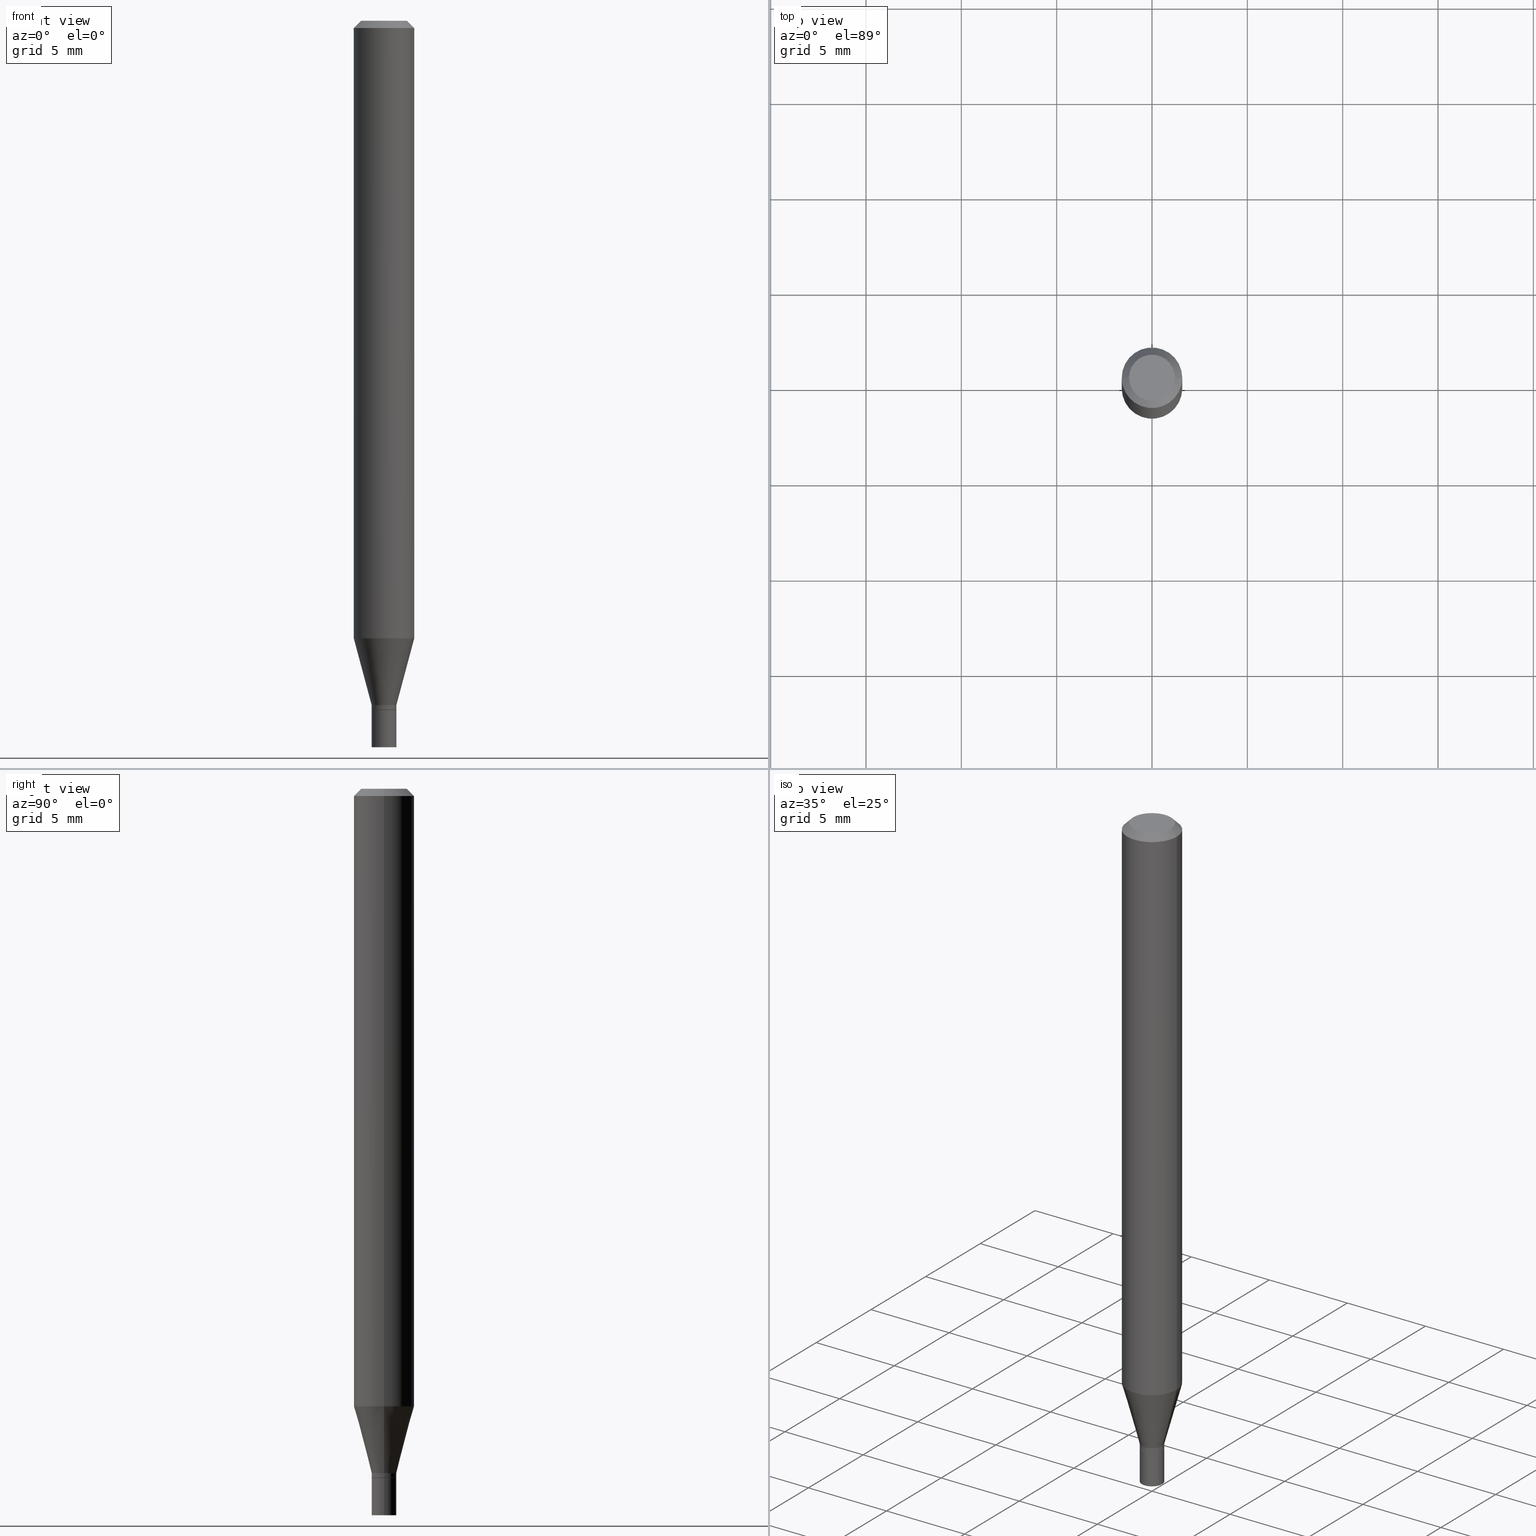
[diagram: canonical four-view strip — front | top / right | iso, engineering-drawing reading convention]
A machine part, canonical four-view strip (front | top / right | iso — engineering-drawing reading convention). The complete STEP part file that produces these views, byte-faithful:
ISO-10303-21;
HEADER;
FILE_DESCRIPTION (( 'STEP AP203' ),
    '1' );
FILE_NAME ('02378.STEP',
    '2024-03-18T20:18:24',
    ( '' ),
    ( '' ),
    'SwSTEP 2.0',
    'SolidWorks 2023',
    '' );
FILE_SCHEMA (( 'CONFIG_CONTROL_DESIGN' ));
ENDSEC;

DATA;
#1 = EDGE_CURVE ( 'NONE', #326, #252, #396, .T. ) ;
#2 = VERTEX_POINT ( 'NONE', #359 ) ;
#3 = CYLINDRICAL_SURFACE ( 'NONE', #180, 0.02549999999999992203 ) ;
#4 = DIMENSIONAL_EXPONENTS ( 1.000000000000000000, 0.000000000000000000, 0.000000000000000000, 0.000000000000000000, 0.000000000000000000, 0.000000000000000000, 0.000000000000000000 ) ;
#5 = EDGE_LOOP ( 'NONE', ( #162, #247, #21, #431 ) ) ;
#6 = CLOSED_SHELL ( 'NONE', ( #58, #301, #405, #155 ) ) ;
#7 = APPROVAL_STATUS ( 'not_yet_approved' ) ;
#8 = DIRECTION ( 'NONE',  ( 1.000000000000000000, -6.982962677686266711E-15, 4.876176775795935793E-29 ) ) ;
#9 = CARTESIAN_POINT ( 'NONE',  ( 3.117762711318311949E-29, -4.451338859026439617E-15, -1.274914120119951644 ) ) ;
#10 = LINE ( 'NONE', #365, #107 ) ;
#11 = CARTESIAN_POINT ( 'NONE',  ( 3.576687321579069994E-29, -5.368277968210015545E-15, -1.500000000000000222 ) ) ;
#12 = FACE_OUTER_BOUND ( 'NONE', #243, .T. ) ;
#13 = DIRECTION ( 'NONE',  ( -2.445468806185136877E-29, 3.491481338843145188E-15, 1.000000000000000000 ) ) ;
#14 = ORIENTED_EDGE ( 'NONE', *, *, #293, .F. ) ;
#15 = AXIS2_PLACEMENT_3D ( 'NONE', #321, #451, #416 ) ;
#16 = CARTESIAN_POINT ( 'NONE',  ( 3.455447423139598357E-29, -4.933463131785365512E-15, -1.413000000000000256 ) ) ;
#17 = MANIFOLD_SOLID_BREP ( 'Body-Move/Copy2[1]', #6 ) ;
#18 = DATE_AND_TIME ( #345, #108 ) ;
#19 = DIRECTION ( 'NONE',  ( -1.000000000000000000, 6.982962677686265922E-15, -4.876176775795935793E-29 ) ) ;
#20 = EDGE_LOOP ( 'NONE', ( #166, #106, #99, #205 ) ) ;
#21 = ORIENTED_EDGE ( 'NONE', *, *, #355, .T. ) ;
#22 = APPROVAL_STATUS ( 'not_yet_approved' ) ;
#23 = VECTOR ( 'NONE', #336, 39.37007874015748143 ) ;
#24 = LOCAL_TIME ( 16, 18, 24.00000000000000000, #134 ) ;
#25 = CARTESIAN_POINT ( 'NONE',  ( 0.02549999999999999836, -5.146443493454796047E-15, -1.423000000000000043 ) ) ;
#26 = ORIENTED_EDGE ( 'NONE', *, *, #212, .T. ) ;
#27 = FACE_OUTER_BOUND ( 'NONE', #288, .T. ) ;
#28 = DIRECTION ( 'NONE',  ( -2.445468806185136597E-29, 3.491481338843145583E-15, 1.000000000000000000 ) ) ;
#29 = VECTOR ( 'NONE', #439, 39.37007874015748143 ) ;
#30 = ORGANIZATION ( 'UNSPECIFIED', 'UNSPECIFIED', '' ) ;
#31 = PRODUCT_DEFINITION ( 'UNKNOWN', '', #139, #84 ) ;
#32 = CARTESIAN_POINT ( 'NONE',  ( -0.02549999999999999836, -4.921611579100430777E-15, -1.423000000000000043 ) ) ;
#33 = ORIENTED_EDGE ( 'NONE', *, *, #348, .T. ) ;
#34 = CONICAL_SURFACE ( 'NONE', #343, 0.02499999999999999792, 0.7853981633974739252 ) ;
#35 = ORIENTED_EDGE ( 'NONE', *, *, #389, .F. ) ;
#36 = EDGE_LOOP ( 'NONE', ( #433, #418, #132, #302 ) ) ;
#37 = DIRECTION ( 'NONE',  ( 1.000000000000000000, -6.982962677686259611E-15, 0.000000000000000000 ) ) ;
#38 = DIRECTION ( 'NONE',  ( -2.445468806185136597E-29, 3.491481338843145583E-15, 1.000000000000000000 ) ) ;
#39 = DIRECTION ( 'NONE',  ( -0.2588190451025212391, 5.211531920934549464E-15, 0.9659258262890679791 ) ) ;
#40 = EDGE_CURVE ( 'NONE', #245, #127, #373, .T. ) ;
#41 = AXIS2_PLACEMENT_3D ( 'NONE', #421, #311, #126 ) ;
#42 = DATE_AND_TIME ( #367, #216 ) ;
#43 = CARTESIAN_POINT ( 'NONE',  ( -0.02499999999999999792, -4.788093034059660756E-15, -1.423000000000000043 ) ) ;
#44 = APPROVAL_ROLE ( '' ) ;
#45 = DIRECTION ( 'NONE',  ( 1.000000000000000000, -6.982962677686262766E-15, 0.000000000000000000 ) ) ;
#46 = DIRECTION ( 'NONE',  ( 1.000000000000000000, -6.982962677686259611E-15, 0.000000000000000000 ) ) ;
#47 = ORIENTED_EDGE ( 'NONE', *, *, #176, .T. ) ;
#48 = CARTESIAN_POINT ( 'NONE',  ( 1.780655482810345820E-16, 0.02549999999999503011, -1.423000000000000043 ) ) ;
#49 = ADVANCED_FACE ( 'NONE', ( #141 ), #385, .T. ) ;
#50 = FACE_OUTER_BOUND ( 'NONE', #287, .T. ) ;
#51 = AXIS2_PLACEMENT_3D ( 'NONE', #241, #63, #207 ) ;
#52 = DIRECTION ( 'NONE',  ( -2.445468806185136877E-29, 3.491481338843145188E-15, 1.000000000000000000 ) ) ;
#53 = DIRECTION ( 'NONE',  ( 0.2588190451025212391, 1.565188264969622362E-15, 0.9659258262890679791 ) ) ;
#54 = CC_DESIGN_DATE_AND_TIME_ASSIGNMENT ( #42, #70, ( #278 ) ) ;
#55 = DIRECTION ( 'NONE',  ( -2.445468806185136597E-29, 3.491481338843145583E-15, 1.000000000000000000 ) ) ;
#56 = APPLICATION_PROTOCOL_DEFINITION ( 'international standard', 'config_control_design', 1994, #452 ) ;
#57 = DIRECTION ( 'NONE',  ( -2.445468806185136597E-29, 3.491481338843145583E-15, 1.000000000000000000 ) ) ;
#58 = ADVANCED_FACE ( 'NONE', ( #71 ), #133, .T. ) ;
#59 = AXIS2_PLACEMENT_3D ( 'NONE', #93, #360, #388 ) ;
#60 = CONICAL_SURFACE ( 'NONE', #41, 0.02499999999999999792, 0.7853981633974739252 ) ;
#61 = DATE_TIME_ROLE ( 'creation_date' ) ;
#62 = ORIENTED_EDGE ( 'NONE', *, *, #171, .T. ) ;
#63 = DIRECTION ( 'NONE',  ( -2.438088387897960049E-29, 3.491481338843145188E-15, 1.000000000000000000 ) ) ;
#64 = EDGE_CURVE ( 'NONE', #312, #357, #223, .T. ) ;
#65 = CARTESIAN_POINT ( 'NONE',  ( 0.000000000000000000, 0.000000000000000000, 0.000000000000000000 ) ) ;
#66 = ORIENTED_EDGE ( 'NONE', *, *, #348, .F. ) ;
#67 = CIRCLE ( 'NONE', #260, 0.02549999999999999836 ) ;
#68 = EDGE_LOOP ( 'NONE', ( #463, #285, #47, #112 ) ) ;
#69 = ADVANCED_FACE ( 'NONE', ( #276 ), #432, .T. ) ;
#70 = DATE_TIME_ROLE ( 'classification_date' ) ;
#71 = FACE_OUTER_BOUND ( 'NONE', #374, .T. ) ;
#72 = ADVANCED_FACE ( 'NONE', ( #284 ), #208, .T. ) ;
#73 = CARTESIAN_POINT ( 'NONE',  ( 0.02549999999999999836, -1.780655482809997982E-16, 1.243425077827963501E-30 ) ) ;
#74 = FACE_OUTER_BOUND ( 'NONE', #281, .T. ) ;
#75 = PERSON_AND_ORGANIZATION ( #111, #30 ) ;
#76 = ORIENTED_EDGE ( 'NONE', *, *, #176, .F. ) ;
#77 = CARTESIAN_POINT ( 'NONE',  ( 0.06250000000000000000, -4.887774026381831286E-15, -1.274914120119951644 ) ) ;
#78 = CARTESIAN_POINT ( 'NONE',  ( 0.02549999999999992203, -5.144697752785373754E-15, -1.422500000000000098 ) ) ;
#79 = DIRECTION ( 'NONE',  ( -2.445468806185136597E-29, 3.491481338843145583E-15, 1.000000000000000000 ) ) ;
#80 = CARTESIAN_POINT ( 'NONE',  ( -0.04749999999999999362, 3.578768372314200645E-16, -5.475136966724983420E-16 ) ) ;
#81 = ORIENTED_EDGE ( 'NONE', *, *, #328, .T. ) ;
#82 = CARTESIAN_POINT ( 'NONE',  ( -0.02549999999999992203, 1.811883976188249934E-16, -1.254328448014996992E-30 ) ) ;
#83 = DIRECTION ( 'NONE',  ( 1.000000000000000000, -6.982962677686266711E-15, 4.876176775795935793E-29 ) ) ;
#84 = DESIGN_CONTEXT ( 'detailed design', #347, 'design' ) ;
#85 = ORIENTED_EDGE ( 'NONE', *, *, #157, .T. ) ;
#86 = LINE ( 'NONE', #228, #291 ) ;
#87 = VERTEX_POINT ( 'NONE', #32 ) ;
#88 = AXIS2_PLACEMENT_3D ( 'NONE', #230, #267, #8 ) ;
#89 = APPROVAL_PERSON_ORGANIZATION ( #217, #268, #44 ) ;
#90 = PERSON_AND_ORGANIZATION ( #111, #30 ) ;
#91 = CARTESIAN_POINT ( 'NONE',  ( 3.479902111201449341E-29, -4.968377945173796372E-15, -1.423000000000000043 ) ) ;
#92 = LINE ( 'NONE', #236, #224 ) ;
#93 = CARTESIAN_POINT ( 'NONE',  ( 3.668203209277705088E-31, -5.237222008264718399E-17, -0.01499999999999999944 ) ) ;
#94 = VECTOR ( 'NONE', #335, 39.37007874015748143 ) ;
#95 = ORIENTED_EDGE ( 'NONE', *, *, #328, .F. ) ;
#96 = CARTESIAN_POINT ( 'NONE',  ( 3.478679376798357100E-29, -4.966632204504374868E-15, -1.422500000000000098 ) ) ;
#97 = DIRECTION ( 'NONE',  ( -2.445468806185136597E-29, 3.491481338843145583E-15, 1.000000000000000000 ) ) ;
#98 = APPROVAL ( #232, 'UNSPECIFIED' ) ;
#99 = ORIENTED_EDGE ( 'NONE', *, *, #389, .T. ) ;
#100 = CIRCLE ( 'NONE', #251, 0.06250000000000000000 ) ;
#101 = ADVANCED_FACE ( 'NONE', ( #172 ), #3, .T. ) ;
#102 = DIRECTION ( 'NONE',  ( -2.445468806185136597E-29, 3.491481338843145583E-15, 1.000000000000000000 ) ) ;
#103 = EDGE_CURVE ( 'NONE', #283, #127, #218, .T. ) ;
#104 = ORIENTED_EDGE ( 'NONE', *, *, #427, .F. ) ;
#105 = VERTEX_POINT ( 'NONE', #394 ) ;
#106 = ORIENTED_EDGE ( 'NONE', *, *, #378, .T. ) ;
#107 = VECTOR ( 'NONE', #13, 39.37007874015748143 ) ;
#108 = LOCAL_TIME ( 16, 18, 24.00000000000000000, #239 ) ;
#109 = DIRECTION ( 'NONE',  ( -2.445468806185136597E-29, 3.491481338843145583E-15, 1.000000000000000000 ) ) ;
#110 = LINE ( 'NONE', #182, #130 ) ;
#111 = PERSON ( 'UNSPECIFIED', 'UNSPECIFIED', 'UNSPECIFIED', ('UNSPECIFIED'), ('UNSPECIFIED'), ('UNSPECIFIED') ) ;
#112 = ORIENTED_EDGE ( 'NONE', *, *, #242, .F. ) ;
#113 = FACE_OUTER_BOUND ( 'NONE', #240, .T. ) ;
#114 = DIRECTION ( 'NONE',  ( -2.445468806185136597E-29, 3.491481338843145583E-15, 1.000000000000000000 ) ) ;
#115 = APPROVAL_DATE_TIME ( #334, #268 ) ;
#116 = DIRECTION ( 'NONE',  ( -2.445468806185136597E-29, 3.491481338843145583E-15, 1.000000000000000000 ) ) ;
#117 = LINE ( 'NONE', #186, #29 ) ;
#118 = CIRCLE ( 'NONE', #181, 0.02499999999999999792 ) ;
#119 = VECTOR ( 'NONE', #53, 39.37007874015748854 ) ;
#120 = DIRECTION ( 'NONE',  ( -2.445468806185136597E-29, 3.491481338843145583E-15, 1.000000000000000000 ) ) ;
#121 = CARTESIAN_POINT ( 'NONE',  ( 0.02549999999999991857, -5.111528680066364398E-15, -1.413000000000000256 ) ) ;
#122 = LINE ( 'NONE', #417, #403 ) ;
#123 = EDGE_CURVE ( 'NONE', #422, #105, #246, .T. ) ;
#124 = AXIS2_PLACEMENT_3D ( 'NONE', #16, #149, #346 ) ;
#125 = DIRECTION ( 'NONE',  ( 1.000000000000000000, 0.000000000000000000, 0.000000000000000000 ) ) ;
#126 = DIRECTION ( 'NONE',  ( 1.000000000000000000, -6.982962677686255667E-15, 0.000000000000000000 ) ) ;
#127 = VERTEX_POINT ( 'NONE', #244 ) ;
#128 = PLANE ( 'NONE',  #51 ) ;
#129 = AXIS2_PLACEMENT_3D ( 'NONE', #153, #280, #37 ) ;
#130 = VECTOR ( 'NONE', #39, 39.37007874015748854 ) ;
#131 =( CONVERSION_BASED_UNIT ( 'INCH', #164 ) LENGTH_UNIT ( ) NAMED_UNIT ( #4 ) );
#132 = ORIENTED_EDGE ( 'NONE', *, *, #183, .F. ) ;
#133 = CYLINDRICAL_SURFACE ( 'NONE', #152, 0.02549999999999999836 ) ;
#134 = COORDINATED_UNIVERSAL_TIME_OFFSET ( 5, 0, .BEHIND. ) ;
#135 = CARTESIAN_POINT ( 'NONE',  ( 0.000000000000000000, 0.000000000000000000, 0.000000000000000000 ) ) ;
#136 = ADVANCED_BREP_SHAPE_REPRESENTATION ( '02378', ( #17, #331, #324 ), #202 ) ;
#137 = ORIENTED_EDGE ( 'NONE', *, *, #150, .T. ) ;
#138 = DIRECTION ( 'NONE',  ( -2.445468806185136597E-29, 3.491481338843145583E-15, 1.000000000000000000 ) ) ;
#139 = PRODUCT_DEFINITION_FORMATION_WITH_SPECIFIED_SOURCE ( 'ANY', '', #401, .NOT_KNOWN. ) ;
#140 = ADVANCED_FACE ( 'NONE', ( #27 ), #128, .F. ) ;
#141 = FACE_OUTER_BOUND ( 'NONE', #5, .T. ) ;
#142 = CIRCLE ( 'NONE', #286, 0.02549999999999992203 ) ;
#143 = DIRECTION ( 'NONE',  ( -0.7071067811865604513, 2.468850131082393139E-15, -0.7071067811865343611 ) ) ;
#144 = CC_DESIGN_SECURITY_CLASSIFICATION ( #278, ( #139 ) ) ;
#145 = DIRECTION ( 'NONE',  ( 1.000000000000000000, -6.982962677686262766E-15, 0.000000000000000000 ) ) ;
#146 = FACE_OUTER_BOUND ( 'NONE', #361, .T. ) ;
#147 = CARTESIAN_POINT ( 'NONE',  ( 0.04749999999999999362, -4.035134999187587991E-16, -5.475136966724933130E-16 ) ) ;
#148 = CARTESIAN_POINT ( 'NONE',  ( 0.02499999999999999792, -5.142952012115952251E-15, -1.423000000000000043 ) ) ;
#149 = DIRECTION ( 'NONE',  ( -2.445468806185136597E-29, 3.491481338843145583E-15, 1.000000000000000000 ) ) ;
#150 = EDGE_CURVE ( 'NONE', #87, #436, #159, .T. ) ;
#151 = CYLINDRICAL_SURFACE ( 'NONE', #362, 0.02549999999999999836 ) ;
#152 = AXIS2_PLACEMENT_3D ( 'NONE', #65, #167, #314 ) ;
#153 = CARTESIAN_POINT ( 'NONE',  ( 3.455447423139598357E-29, -4.933463131785365512E-15, -1.413000000000000256 ) ) ;
#154 = CARTESIAN_POINT ( 'NONE',  ( 3.316907271900976096E-16, 0.04749999999999999362, -4.396022119312973841E-16 ) ) ;
#155 = ADVANCED_FACE ( 'NONE', ( #12 ), #219, .F. ) ;
#156 = PERSON_AND_ORGANIZATION ( #111, #30 ) ;
#157 = EDGE_CURVE ( 'NONE', #279, #173, #464, .T. ) ;
#158 = EDGE_LOOP ( 'NONE', ( #459, #441, #177, #395 ) ) ;
#159 = CIRCLE ( 'NONE', #15, 0.02549999999999999836 ) ;
#160 = CC_DESIGN_PERSON_AND_ORGANIZATION_ASSIGNMENT ( #190, #258, ( #139 ) ) ;
#161 = COORDINATED_UNIVERSAL_TIME_OFFSET ( 5, 0, .BEHIND. ) ;
#162 = ORIENTED_EDGE ( 'NONE', *, *, #445, .F. ) ;
#163 = DIRECTION ( 'NONE',  ( 1.000000000000000000, -6.982962677686258822E-15, 0.000000000000000000 ) ) ;
#164 = LENGTH_MEASURE_WITH_UNIT ( LENGTH_MEASURE( 0.02539999999999999897 ), #274 );
#165 = DIRECTION ( 'NONE',  ( 1.000000000000000000, -6.982962677686255667E-15, 0.000000000000000000 ) ) ;
#166 = ORIENTED_EDGE ( 'NONE', *, *, #171, .F. ) ;
#167 = DIRECTION ( 'NONE',  ( -2.445468806185136597E-29, 3.491481338843145583E-15, 1.000000000000000000 ) ) ;
#168 = CIRCLE ( 'NONE', #124, 0.02549999999999991857 ) ;
#169 = CC_DESIGN_APPROVAL ( #268, ( #278 ) ) ;
#170 = DIRECTION ( 'NONE',  ( 1.000000000000000000, -6.982962677686266711E-15, 4.876176775795935793E-29 ) ) ;
#171 = EDGE_CURVE ( 'NONE', #105, #326, #303, .T. ) ;
#172 = FACE_OUTER_BOUND ( 'NONE', #20, .T. ) ;
#173 = VERTEX_POINT ( 'NONE', #297 ) ;
#174 = AXIS2_PLACEMENT_3D ( 'NONE', #96, #28, #163 ) ;
#175 = ORIENTED_EDGE ( 'NONE', *, *, #338, .T. ) ;
#176 = EDGE_CURVE ( 'NONE', #252, #283, #191, .T. ) ;
#177 = ORIENTED_EDGE ( 'NONE', *, *, #183, .T. ) ;
#178 = DIRECTION ( 'NONE',  ( 1.000000000000000000, -6.982962677686266711E-15, 0.000000000000000000 ) ) ;
#179 = DIRECTION ( 'NONE',  ( 1.000000000000000000, -6.982962677686259611E-15, 0.000000000000000000 ) ) ;
#180 = AXIS2_PLACEMENT_3D ( 'NONE', #135, #97, #400 ) ;
#181 = AXIS2_PLACEMENT_3D ( 'NONE', #185, #234, #165 ) ;
#182 = CARTESIAN_POINT ( 'NONE',  ( -0.02549999999999991857, -4.752274734166540987E-15, -1.413000000000000256 ) ) ;
#183 = EDGE_CURVE ( 'NONE', #127, #245, #277, .T. ) ;
#184 = COORDINATED_UNIVERSAL_TIME_OFFSET ( 5, 0, .BEHIND. ) ;
#185 = CARTESIAN_POINT ( 'NONE',  ( 3.479902111201449341E-29, -4.968377945173796372E-15, -1.423000000000000043 ) ) ;
#186 = CARTESIAN_POINT ( 'NONE',  ( -0.02499999999999999792, -4.790742261233771168E-15, -1.423000000000000043 ) ) ;
#187 = DIRECTION ( 'NONE',  ( -2.438088387897960049E-29, 3.491481338843145188E-15, 1.000000000000000000 ) ) ;
#188 = DIRECTION ( 'NONE',  ( 1.000000000000000000, -6.982962677686258822E-15, 0.000000000000000000 ) ) ;
#189 = EDGE_LOOP ( 'NONE', ( #14, #399, #381, #353 ) ) ;
#190 = PERSON_AND_ORGANIZATION ( #111, #30 ) ;
#191 = LINE ( 'NONE', #292, #119 ) ;
#192 = DIRECTION ( 'NONE',  ( 2.438088387897960049E-29, -3.491481338843145188E-15, -1.000000000000000000 ) ) ;
#193 = AXIS2_PLACEMENT_3D ( 'NONE', #449, #120, #179 ) ;
#194 = CC_DESIGN_APPROVAL ( #330, ( #31 ) ) ;
#195 = APPLICATION_PROTOCOL_DEFINITION ( 'international standard', 'config_control_design', 1994, #347 ) ;
#196 = EDGE_CURVE ( 'NONE', #252, #326, #168, .T. ) ;
#197 = DIRECTION ( 'NONE',  ( 0.000000000000000000, 0.000000000000000000, 1.000000000000000000 ) ) ;
#198 = ORIENTED_EDGE ( 'NONE', *, *, #265, .F. ) ;
#199 = PRODUCT_RELATED_PRODUCT_CATEGORY ( 'detail', '', ( #401 ) ) ;
#200 = MECHANICAL_CONTEXT ( 'NONE', #452, 'mechanical' ) ;
#201 = ORIENTED_EDGE ( 'NONE', *, *, #427, .T. ) ;
#202 =( GEOMETRIC_REPRESENTATION_CONTEXT ( 3 ) GLOBAL_UNCERTAINTY_ASSIGNED_CONTEXT ( ( #305 ) ) GLOBAL_UNIT_ASSIGNED_CONTEXT ( ( #131, #354, #349 ) ) REPRESENTATION_CONTEXT ( 'NONE', 'WORKASPACE' ) );
#203 = DIRECTION ( 'NONE',  ( -2.445468806185136877E-29, 3.491481338843145188E-15, 1.000000000000000000 ) ) ;
#204 = PERSON_AND_ORGANIZATION_ROLE ( 'design_owner' ) ;
#205 = ORIENTED_EDGE ( 'NONE', *, *, #1, .F. ) ;
#206 = EDGE_CURVE ( 'NONE', #283, #249, #100, .T. ) ;
#207 = DIRECTION ( 'NONE',  ( 1.000000000000000000, -6.982962677686265922E-15, 4.876176775795935793E-29 ) ) ;
#208 = CONICAL_SURFACE ( 'NONE', #59, 0.06250000000000000000, 0.7853981633974667087 ) ;
#209 = CIRCLE ( 'NONE', #386, 0.04749999999999999362 ) ;
#210 = ORIENTED_EDGE ( 'NONE', *, *, #430, .F. ) ;
#211 = DIRECTION ( 'NONE',  ( -2.445468806185136597E-29, 3.491481338843145583E-15, 1.000000000000000000 ) ) ;
#212 = EDGE_CURVE ( 'NONE', #173, #436, #411, .T. ) ;
#213 = ORIENTED_EDGE ( 'NONE', *, *, #318, .T. ) ;
#214 = CC_DESIGN_PERSON_AND_ORGANIZATION_ASSIGNMENT ( #296, #448, ( #139 ) ) ;
#215 = AXIS2_PLACEMENT_3D ( 'NONE', #48, #406, #19 ) ;
#216 = LOCAL_TIME ( 16, 18, 24.00000000000000000, #262 ) ;
#217 = PERSON_AND_ORGANIZATION ( #111, #30 ) ;
#218 = LINE ( 'NONE', #461, #455 ) ;
#219 = PLANE ( 'NONE',  #215 ) ;
#220 = DIRECTION ( 'NONE',  ( -2.445468806185136597E-29, 3.491481338843145583E-15, 1.000000000000000000 ) ) ;
#221 = PERSON_AND_ORGANIZATION_ROLE ( 'classification_officer' ) ;
#222 = DIRECTION ( 'NONE',  ( 1.000000000000000000, -6.982962677686255667E-15, 0.000000000000000000 ) ) ;
#223 = CIRCLE ( 'NONE', #250, 0.04749999999999999362 ) ;
#224 = VECTOR ( 'NONE', #52, 39.37007874015748143 ) ;
#225 = CARTESIAN_POINT ( 'NONE',  ( -0.02549999999999999836, -4.921611579100430777E-15, -1.500000000000000222 ) ) ;
#226 = FACE_OUTER_BOUND ( 'NONE', #189, .T. ) ;
#227 = DIRECTION ( 'NONE',  ( -2.445468806185136597E-29, 3.491481338843145583E-15, 1.000000000000000000 ) ) ;
#228 = CARTESIAN_POINT ( 'NONE',  ( -0.06250000000000000000, 4.440892098500626162E-16, -3.074334431409316114E-30 ) ) ;
#229 = ADVANCED_FACE ( 'NONE', ( #259 ), #387, .T. ) ;
#230 = CARTESIAN_POINT ( 'NONE',  ( 0.000000000000000000, 0.000000000000000000, 0.000000000000000000 ) ) ;
#231 = CONICAL_SURFACE ( 'NONE', #368, 0.02549999999999991857, 0.2617993877991499629 ) ;
#232 = APPROVAL_STATUS ( 'not_yet_approved' ) ;
#233 = ORIENTED_EDGE ( 'NONE', *, *, #212, .F. ) ;
#234 = DIRECTION ( 'NONE',  ( -2.445468806185136597E-29, 3.491481338843145583E-15, 1.000000000000000000 ) ) ;
#235 = DIRECTION ( 'NONE',  ( 1.000000000000000000, -6.982962677686275388E-15, 0.000000000000000000 ) ) ;
#236 = CARTESIAN_POINT ( 'NONE',  ( -0.02549999999999999836, 1.811883976188255358E-16, -1.254328448015001021E-30 ) ) ;
#237 = CARTESIAN_POINT ( 'NONE',  ( 1.338927666171699620E-44, -1.911633854693045944E-30, -5.475136966724958768E-16 ) ) ;
#238 = VECTOR ( 'NONE', #364, 39.37007874015748143 ) ;
#239 = COORDINATED_UNIVERSAL_TIME_OFFSET ( 5, 0, .BEHIND. ) ;
#240 = EDGE_LOOP ( 'NONE', ( #198, #435 ) ) ;
#241 = CARTESIAN_POINT ( 'NONE',  ( 3.479902111201449341E-29, -4.968377945173796372E-15, -1.423000000000000043 ) ) ;
#242 = EDGE_CURVE ( 'NONE', #249, #283, #420, .T. ) ;
#243 = EDGE_LOOP ( 'NONE', ( #402, #137 ) ) ;
#244 = CARTESIAN_POINT ( 'NONE',  ( 0.06250000000000000000, -4.888073874380388472E-16, -0.01499999999999999944 ) ) ;
#245 = VERTEX_POINT ( 'NONE', #438 ) ;
#246 = CIRCLE ( 'NONE', #174, 0.02549999999999992203 ) ;
#247 = ORIENTED_EDGE ( 'NONE', *, *, #318, .F. ) ;
#248 = CARTESIAN_POINT ( 'NONE',  ( 0.000000000000000000, 0.000000000000000000, 0.000000000000000000 ) ) ;
#249 = VERTEX_POINT ( 'NONE', #294 ) ;
#250 = AXIS2_PLACEMENT_3D ( 'NONE', #237, #102, #428 ) ;
#251 = AXIS2_PLACEMENT_3D ( 'NONE', #9, #227, #45 ) ;
#252 = VERTEX_POINT ( 'NONE', #121 ) ;
#253 = LINE ( 'NONE', #148, #23 ) ;
#254 = DIRECTION ( 'NONE',  ( 0.7071067811865604513, -7.319954787623298644E-15, -0.7071067811865343611 ) ) ;
#255 = DIRECTION ( 'NONE',  ( 1.000000000000000000, -6.982962677686265922E-15, 4.876176775795935793E-29 ) ) ;
#256 = CC_DESIGN_DATE_AND_TIME_ASSIGNMENT ( #18, #61, ( #31 ) ) ;
#257 = DIRECTION ( 'NONE',  ( -2.445468806185136597E-29, 3.491481338843145583E-15, 1.000000000000000000 ) ) ;
#258 = PERSON_AND_ORGANIZATION_ROLE ( 'creator' ) ;
#259 = FACE_OUTER_BOUND ( 'NONE', #68, .T. ) ;
#260 = AXIS2_PLACEMENT_3D ( 'NONE', #91, #55, #235 ) ;
#261 = APPROVAL_PERSON_ORGANIZATION ( #390, #330, #356 ) ;
#262 = COORDINATED_UNIVERSAL_TIME_OFFSET ( 5, 0, .BEHIND. ) ;
#263 = LINE ( 'NONE', #440, #457 ) ;
#264 = EDGE_LOOP ( 'NONE', ( #95, #273, #33, #379 ) ) ;
#265 = EDGE_CURVE ( 'NONE', #173, #279, #319, .T. ) ;
#266 = DIRECTION ( 'NONE',  ( 1.000000000000000000, -6.982962677686275388E-15, 0.000000000000000000 ) ) ;
#267 = DIRECTION ( 'NONE',  ( -2.445468806185136597E-29, 3.491481338843145583E-15, 1.000000000000000000 ) ) ;
#268 = APPROVAL ( #7, 'UNSPECIFIED' ) ;
#269 = ORIENTED_EDGE ( 'NONE', *, *, #196, .F. ) ;
#270 = AXIS2_PLACEMENT_3D ( 'NONE', #154, #192, #408 ) ;
#271 = FACE_OUTER_BOUND ( 'NONE', #393, .T. ) ;
#272 = PERSON_AND_ORGANIZATION ( #111, #30 ) ;
#273 = ORIENTED_EDGE ( 'NONE', *, *, #313, .T. ) ;
#274 =( LENGTH_UNIT ( ) NAMED_UNIT ( * ) SI_UNIT ( $, .METRE. ) );
#275 = ORIENTED_EDGE ( 'NONE', *, *, #196, .T. ) ;
#276 = FACE_OUTER_BOUND ( 'NONE', #36, .T. ) ;
#277 = CIRCLE ( 'NONE', #376, 0.06250000000000000000 ) ;
#278 = SECURITY_CLASSIFICATION ( '', '', #404 ) ;
#279 = VERTEX_POINT ( 'NONE', #225 ) ;
#280 = DIRECTION ( 'NONE',  ( -2.445468806185136597E-29, 3.491481338843145583E-15, 1.000000000000000000 ) ) ;
#281 = EDGE_LOOP ( 'NONE', ( #275, #175, #340, #76 ) ) ;
#282 = DATE_AND_TIME ( #289, #24 ) ;
#283 = VERTEX_POINT ( 'NONE', #77 ) ;
#284 = FACE_OUTER_BOUND ( 'NONE', #158, .T. ) ;
#285 = ORIENTED_EDGE ( 'NONE', *, *, #1, .T. ) ;
#286 = AXIS2_PLACEMENT_3D ( 'NONE', #450, #220, #188 ) ;
#287 = EDGE_LOOP ( 'NONE', ( #213, #466 ) ) ;
#288 = EDGE_LOOP ( 'NONE', ( #104, #384 ) ) ;
#289 = CALENDAR_DATE ( 2024, 18, 3 ) ;
#290 = AXIS2_PLACEMENT_3D ( 'NONE', #423, #358, #392 ) ;
#291 = VECTOR ( 'NONE', #442, 39.37007874015748143 ) ;
#292 = CARTESIAN_POINT ( 'NONE',  ( 0.02549999999999991857, -5.111528680066364398E-15, -1.413000000000000256 ) ) ;
#293 = EDGE_CURVE ( 'NONE', #249, #245, #86, .T. ) ;
#294 = CARTESIAN_POINT ( 'NONE',  ( -0.06250000000000000000, -4.007249649176377790E-15, -1.274914120119951644 ) ) ;
#295 = DIRECTION ( 'NONE',  ( -2.445468806185136597E-29, 3.491481338843145583E-15, 1.000000000000000000 ) ) ;
#296 = PERSON_AND_ORGANIZATION ( #111, #30 ) ;
#297 = CARTESIAN_POINT ( 'NONE',  ( 0.02549999999999999836, -5.415287556545718640E-15, -1.500000000000000222 ) ) ;
#298 = CYLINDRICAL_SURFACE ( 'NONE', #410, 0.02549999999999992203 ) ;
#299 = DIRECTION ( 'NONE',  ( 1.000000000000000000, -6.982962677686275388E-15, 0.000000000000000000 ) ) ;
#300 = CARTESIAN_POINT ( 'NONE',  ( -0.02549999999999991857, -4.379762191671458599E-15, -1.413000000000000256 ) ) ;
#301 = ADVANCED_FACE ( 'NONE', ( #113 ), #375, .F. ) ;
#302 = ORIENTED_EDGE ( 'NONE', *, *, #103, .F. ) ;
#303 = LINE ( 'NONE', #82, #94 ) ;
#304 = DIRECTION ( 'NONE',  ( 1.000000000000000000, -6.982962677686255667E-15, 0.000000000000000000 ) ) ;
#305 = UNCERTAINTY_MEASURE_WITH_UNIT (LENGTH_MEASURE( 1.000000000000000082E-05 ), #131, 'distance_accuracy_value', 'NONE');
#306 = ORIENTED_EDGE ( 'NONE', *, *, #123, .T. ) ;
#307 = CIRCLE ( 'NONE', #434, 0.02499999999999999792 ) ;
#308 = DATE_AND_TIME ( #462, #325 ) ;
#309 = ADVANCED_FACE ( 'NONE', ( #407 ), #34, .T. ) ;
#310 = VERTEX_POINT ( 'NONE', #43 ) ;
#311 = DIRECTION ( 'NONE',  ( -2.445468806185136597E-29, 3.491481338843145583E-15, 1.000000000000000000 ) ) ;
#312 = VERTEX_POINT ( 'NONE', #147 ) ;
#313 = EDGE_CURVE ( 'NONE', #310, #2, #118, .T. ) ;
#314 = DIRECTION ( 'NONE',  ( 1.000000000000000000, -6.982962677686266711E-15, 4.876176775795935793E-29 ) ) ;
#315 = CARTESIAN_POINT ( 'NONE',  ( 1.338927666171699620E-44, -1.911633854693045944E-30, -5.475136966724958768E-16 ) ) ;
#316 = AXIS2_PLACEMENT_3D ( 'NONE', #248, #138, #170 ) ;
#317 = CARTESIAN_POINT ( 'NONE',  ( 3.668203209277705088E-31, -5.237222008264718399E-17, -0.01499999999999999944 ) ) ;
#318 = EDGE_CURVE ( 'NONE', #357, #312, #209, .T. ) ;
#319 = CIRCLE ( 'NONE', #437, 0.02549999999999999836 ) ;
#320 = APPROVAL_PERSON_ORGANIZATION ( #156, #98, #380 ) ;
#321 = CARTESIAN_POINT ( 'NONE',  ( 3.479902111201449341E-29, -4.968377945173796372E-15, -1.423000000000000043 ) ) ;
#322 = EDGE_LOOP ( 'NONE', ( #306, #62, #269, #35 ) ) ;
#323 = ORIENTED_EDGE ( 'NONE', *, *, #465, .T. ) ;
#324 = AXIS2_PLACEMENT_3D ( 'NONE', #383, #197, #125 ) ;
#325 = LOCAL_TIME ( 16, 18, 24.00000000000000000, #161 ) ;
#326 = VERTEX_POINT ( 'NONE', #300 ) ;
#327 = PRODUCT_DEFINITION_SHAPE ( 'NONE', 'NONE',  #31 ) ;
#328 = EDGE_CURVE ( 'NONE', #310, #105, #117, .T. ) ;
#329 = CALENDAR_DATE ( 2024, 18, 3 ) ;
#330 = APPROVAL ( #22, 'UNSPECIFIED' ) ;
#331 = MANIFOLD_SOLID_BREP ( 'Body-Move/Copy2[2]', #341 ) ;
#332 = CARTESIAN_POINT ( 'NONE',  ( 3.117762711318311949E-29, -4.451338859026439617E-15, -1.274914120119951644 ) ) ;
#333 = FACE_OUTER_BOUND ( 'NONE', #322, .T. ) ;
#334 = DATE_AND_TIME ( #329, #377 ) ;
#335 = DIRECTION ( 'NONE',  ( -2.445468806185136877E-29, 3.491481338843145188E-15, 1.000000000000000000 ) ) ;
#336 = DIRECTION ( 'NONE',  ( 0.7071067811865656694, -2.468850131082446387E-15, 0.7071067811865294761 ) ) ;
#337 = CARTESIAN_POINT ( 'NONE',  ( 3.479902111201449341E-29, -4.968377945173796372E-15, -1.423000000000000043 ) ) ;
#338 = EDGE_CURVE ( 'NONE', #326, #249, #110, .T. ) ;
#339 = DIRECTION ( 'NONE',  ( 1.000000000000000000, -6.982962677686267499E-15, 4.876176775795935793E-29 ) ) ;
#340 = ORIENTED_EDGE ( 'NONE', *, *, #206, .F. ) ;
#341 = CLOSED_SHELL ( 'NONE', ( #351, #460, #72, #69, #372, #229, #363, #49, #419, #140, #309, #101 ) ) ;
#342 = DIRECTION ( 'NONE',  ( 1.000000000000000000, -6.982962677686266711E-15, 0.000000000000000000 ) ) ;
#343 = AXIS2_PLACEMENT_3D ( 'NONE', #337, #116, #222 ) ;
#344 = CARTESIAN_POINT ( 'NONE',  ( 3.479902111201449341E-29, -4.968377945173796372E-15, -1.423000000000000043 ) ) ;
#345 = CALENDAR_DATE ( 2024, 18, 3 ) ;
#346 = DIRECTION ( 'NONE',  ( 1.000000000000000000, -6.982962677686259611E-15, 0.000000000000000000 ) ) ;
#347 = APPLICATION_CONTEXT ( 'configuration controlled 3d designs of mechanical parts and assemblies' ) ;
#348 = EDGE_CURVE ( 'NONE', #2, #422, #253, .T. ) ;
#349 =( NAMED_UNIT ( * ) SI_UNIT ( $, .STERADIAN. ) SOLID_ANGLE_UNIT ( ) );
#350 = DIRECTION ( 'NONE',  ( 1.000000000000000000, -6.982962677686267499E-15, 4.852736867747366768E-29 ) ) ;
#351 = ADVANCED_FACE ( 'NONE', ( #333 ), #298, .T. ) ;
#352 = AXIS2_PLACEMENT_3D ( 'NONE', #332, #79, #145 ) ;
#353 = ORIENTED_EDGE ( 'NONE', *, *, #40, .F. ) ;
#354 =( NAMED_UNIT ( * ) PLANE_ANGLE_UNIT ( ) SI_UNIT ( $, .RADIAN. ) );
#355 = EDGE_CURVE ( 'NONE', #357, #245, #122, .T. ) ;
#356 = APPROVAL_ROLE ( '' ) ;
#357 = VERTEX_POINT ( 'NONE', #80 ) ;
#358 = DIRECTION ( 'NONE',  ( 2.445468806185136597E-29, -3.491481338843145583E-15, -1.000000000000000000 ) ) ;
#359 = CARTESIAN_POINT ( 'NONE',  ( 0.02499999999999999792, -5.142952012115952251E-15, -1.423000000000000043 ) ) ;
#360 = DIRECTION ( 'NONE',  ( 2.445468806185136597E-29, -3.491481338843145583E-15, -1.000000000000000000 ) ) ;
#361 = EDGE_LOOP ( 'NONE', ( #456, #85, #26, #429 ) ) ;
#362 = AXIS2_PLACEMENT_3D ( 'NONE', #415, #295, #83 ) ;
#363 = ADVANCED_FACE ( 'NONE', ( #226 ), #453, .T. ) ;
#364 = DIRECTION ( 'NONE',  ( -2.445468806185136877E-29, 3.491481338843145188E-15, 1.000000000000000000 ) ) ;
#365 = CARTESIAN_POINT ( 'NONE',  ( 0.02549999999999992203, -1.780655482809992805E-16, 1.243425077827959823E-30 ) ) ;
#366 = CC_DESIGN_PERSON_AND_ORGANIZATION_ASSIGNMENT ( #75, #221, ( #278 ) ) ;
#367 = CALENDAR_DATE ( 2024, 18, 3 ) ;
#368 = AXIS2_PLACEMENT_3D ( 'NONE', #446, #371, #46 ) ;
#369 = CARTESIAN_POINT ( 'NONE',  ( 3.668203209277705088E-31, -5.237222008264718399E-17, -0.01499999999999999944 ) ) ;
#370 = DIRECTION ( 'NONE',  ( -2.445468806185136597E-29, 3.491481338843145583E-15, 1.000000000000000000 ) ) ;
#371 = DIRECTION ( 'NONE',  ( -2.445468806185136597E-29, 3.491481338843145583E-15, 1.000000000000000000 ) ) ;
#372 = ADVANCED_FACE ( 'NONE', ( #74 ), #231, .T. ) ;
#373 = CIRCLE ( 'NONE', #425, 0.06250000000000000000 ) ;
#374 = EDGE_LOOP ( 'NONE', ( #391, #323, #210, #233 ) ) ;
#375 = PLANE ( 'NONE',  #447 ) ;
#376 = AXIS2_PLACEMENT_3D ( 'NONE', #369, #38, #342 ) ;
#377 = LOCAL_TIME ( 16, 18, 24.00000000000000000, #184 ) ;
#378 = EDGE_CURVE ( 'NONE', #105, #422, #142, .T. ) ;
#379 = ORIENTED_EDGE ( 'NONE', *, *, #378, .F. ) ;
#380 = APPROVAL_ROLE ( '' ) ;
#381 = ORIENTED_EDGE ( 'NONE', *, *, #103, .T. ) ;
#382 = CC_DESIGN_PERSON_AND_ORGANIZATION_ASSIGNMENT ( #90, #458, ( #31 ) ) ;
#383 = CARTESIAN_POINT ( 'NONE',  ( 0.000000000000000000, 0.000000000000000000, 0.000000000000000000 ) ) ;
#384 = ORIENTED_EDGE ( 'NONE', *, *, #313, .F. ) ;
#385 = CONICAL_SURFACE ( 'NONE', #290, 0.06250000000000000000, 0.7853981633974667087 ) ;
#386 = AXIS2_PLACEMENT_3D ( 'NONE', #315, #57, #350 ) ;
#387 = CONICAL_SURFACE ( 'NONE', #193, 0.02549999999999991857, 0.2617993877991499629 ) ;
#388 = DIRECTION ( 'NONE',  ( -1.000000000000000000, 6.982962677686266711E-15, 0.000000000000000000 ) ) ;
#389 = EDGE_CURVE ( 'NONE', #422, #252, #10, .T. ) ;
#390 = PERSON_AND_ORGANIZATION ( #111, #30 ) ;
#391 = ORIENTED_EDGE ( 'NONE', *, *, #265, .T. ) ;
#392 = DIRECTION ( 'NONE',  ( -1.000000000000000000, 6.982962677686266711E-15, 0.000000000000000000 ) ) ;
#393 = EDGE_LOOP ( 'NONE', ( #201, #81, #426, #66 ) ) ;
#394 = CARTESIAN_POINT ( 'NONE',  ( -0.02549999999999992203, -4.785443806885550343E-15, -1.422500000000000098 ) ) ;
#395 = ORIENTED_EDGE ( 'NONE', *, *, #355, .F. ) ;
#396 = CIRCLE ( 'NONE', #129, 0.02549999999999991857 ) ;
#397 = AXIS2_PLACEMENT_3D ( 'NONE', #414, #370, #299 ) ;
#398 = APPROVAL_DATE_TIME ( #282, #98 ) ;
#399 = ORIENTED_EDGE ( 'NONE', *, *, #242, .T. ) ;
#400 = DIRECTION ( 'NONE',  ( 1.000000000000000000, -6.982962677686267499E-15, 4.876176775795935793E-29 ) ) ;
#401 = PRODUCT ( '02378', '02378', '', ( #200 ) ) ;
#402 = ORIENTED_EDGE ( 'NONE', *, *, #430, .T. ) ;
#403 = VECTOR ( 'NONE', #143, 39.37007874015748854 ) ;
#404 = SECURITY_CLASSIFICATION_LEVEL ( 'unclassified' ) ;
#405 = ADVANCED_FACE ( 'NONE', ( #146 ), #151, .T. ) ;
#406 = DIRECTION ( 'NONE',  ( 2.438088387897960049E-29, -3.491481338843145188E-15, -1.000000000000000000 ) ) ;
#407 = FACE_OUTER_BOUND ( 'NONE', #264, .T. ) ;
#408 = DIRECTION ( 'NONE',  ( -1.000000000000000000, 6.982962677686265922E-15, -4.876176775795935793E-29 ) ) ;
#409 = SHAPE_DEFINITION_REPRESENTATION ( #327, #136 ) ;
#410 = AXIS2_PLACEMENT_3D ( 'NONE', #413, #257, #339 ) ;
#411 = LINE ( 'NONE', #73, #238 ) ;
#412 = CC_DESIGN_APPROVAL ( #98, ( #139 ) ) ;
#413 = CARTESIAN_POINT ( 'NONE',  ( 0.000000000000000000, 0.000000000000000000, 0.000000000000000000 ) ) ;
#414 = CARTESIAN_POINT ( 'NONE',  ( 3.668203209277704895E-29, -5.237222008264718177E-15, -1.500000000000000222 ) ) ;
#415 = CARTESIAN_POINT ( 'NONE',  ( 0.000000000000000000, 0.000000000000000000, 0.000000000000000000 ) ) ;
#416 = DIRECTION ( 'NONE',  ( 1.000000000000000000, -6.982962677686275388E-15, 0.000000000000000000 ) ) ;
#417 = CARTESIAN_POINT ( 'NONE',  ( -0.06250000000000000000, 3.840629472727444916E-16, -0.01499999999999999944 ) ) ;
#418 = ORIENTED_EDGE ( 'NONE', *, *, #293, .T. ) ;
#419 = ADVANCED_FACE ( 'NONE', ( #50 ), #443, .F. ) ;
#420 = CIRCLE ( 'NONE', #352, 0.06250000000000000000 ) ;
#421 = CARTESIAN_POINT ( 'NONE',  ( 3.479902111201449341E-29, -4.968377945173796372E-15, -1.423000000000000043 ) ) ;
#422 = VERTEX_POINT ( 'NONE', #78 ) ;
#423 = CARTESIAN_POINT ( 'NONE',  ( 3.668203209277705088E-31, -5.237222008264718399E-17, -0.01499999999999999944 ) ) ;
#424 = APPROVAL_DATE_TIME ( #308, #330 ) ;
#425 = AXIS2_PLACEMENT_3D ( 'NONE', #317, #211, #178 ) ;
#426 = ORIENTED_EDGE ( 'NONE', *, *, #123, .F. ) ;
#427 = EDGE_CURVE ( 'NONE', #2, #310, #307, .T. ) ;
#428 = DIRECTION ( 'NONE',  ( 1.000000000000000000, -6.982962677686267499E-15, 4.852736867747366768E-29 ) ) ;
#429 = ORIENTED_EDGE ( 'NONE', *, *, #150, .F. ) ;
#430 = EDGE_CURVE ( 'NONE', #436, #87, #67, .T. ) ;
#431 = ORIENTED_EDGE ( 'NONE', *, *, #40, .T. ) ;
#432 = CYLINDRICAL_SURFACE ( 'NONE', #316, 0.06250000000000000000 ) ;
#433 = ORIENTED_EDGE ( 'NONE', *, *, #206, .T. ) ;
#434 = AXIS2_PLACEMENT_3D ( 'NONE', #344, #114, #304 ) ;
#435 = ORIENTED_EDGE ( 'NONE', *, *, #157, .F. ) ;
#436 = VERTEX_POINT ( 'NONE', #25 ) ;
#437 = AXIS2_PLACEMENT_3D ( 'NONE', #444, #109, #266 ) ;
#438 = CARTESIAN_POINT ( 'NONE',  ( -0.06250000000000000000, -1.807766329704480929E-15, -0.01499999999999999944 ) ) ;
#439 = DIRECTION ( 'NONE',  ( -0.7071067811865656694, 7.493145998870420424E-15, 0.7071067811865294761 ) ) ;
#440 = CARTESIAN_POINT ( 'NONE',  ( 0.06250000000000000000, -4.811533449433679005E-16, -0.01499999999999999944 ) ) ;
#441 = ORIENTED_EDGE ( 'NONE', *, *, #445, .T. ) ;
#442 = DIRECTION ( 'NONE',  ( -2.445468806185136877E-29, 3.491481338843145188E-15, 1.000000000000000000 ) ) ;
#443 = PLANE ( 'NONE',  #270 ) ;
#444 = CARTESIAN_POINT ( 'NONE',  ( 3.668203209277704895E-29, -5.237222008264718177E-15, -1.500000000000000222 ) ) ;
#445 = EDGE_CURVE ( 'NONE', #312, #127, #263, .T. ) ;
#446 = CARTESIAN_POINT ( 'NONE',  ( 3.455447423139598357E-29, -4.933463131785365512E-15, -1.413000000000000256 ) ) ;
#447 = AXIS2_PLACEMENT_3D ( 'NONE', #11, #187, #255 ) ;
#448 = PERSON_AND_ORGANIZATION_ROLE ( 'design_supplier' ) ;
#449 = CARTESIAN_POINT ( 'NONE',  ( 3.455447423139598357E-29, -4.933463131785365512E-15, -1.413000000000000256 ) ) ;
#450 = CARTESIAN_POINT ( 'NONE',  ( 3.478679376798357100E-29, -4.966632204504374868E-15, -1.422500000000000098 ) ) ;
#451 = DIRECTION ( 'NONE',  ( -2.445468806185136597E-29, 3.491481338843145583E-15, 1.000000000000000000 ) ) ;
#452 = APPLICATION_CONTEXT ( 'configuration controlled 3d designs of mechanical parts and assemblies' ) ;
#453 = CYLINDRICAL_SURFACE ( 'NONE', #88, 0.06250000000000000000 ) ;
#454 = CC_DESIGN_PERSON_AND_ORGANIZATION_ASSIGNMENT ( #272, #204, ( #401 ) ) ;
#455 = VECTOR ( 'NONE', #203, 39.37007874015748143 ) ;
#456 = ORIENTED_EDGE ( 'NONE', *, *, #465, .F. ) ;
#457 = VECTOR ( 'NONE', #254, 39.37007874015748854 ) ;
#458 = PERSON_AND_ORGANIZATION_ROLE ( 'creator' ) ;
#459 = ORIENTED_EDGE ( 'NONE', *, *, #64, .F. ) ;
#460 = ADVANCED_FACE ( 'NONE', ( #271 ), #60, .T. ) ;
#461 = CARTESIAN_POINT ( 'NONE',  ( 0.06250000000000000000, -4.364351673553916694E-16, 3.047610484872459871E-30 ) ) ;
#462 = CALENDAR_DATE ( 2024, 18, 3 ) ;
#463 = ORIENTED_EDGE ( 'NONE', *, *, #338, .F. ) ;
#464 = CIRCLE ( 'NONE', #397, 0.02549999999999999836 ) ;
#465 = EDGE_CURVE ( 'NONE', #279, #87, #92, .T. ) ;
#466 = ORIENTED_EDGE ( 'NONE', *, *, #64, .T. ) ;
ENDSEC;
END-ISO-10303-21;
